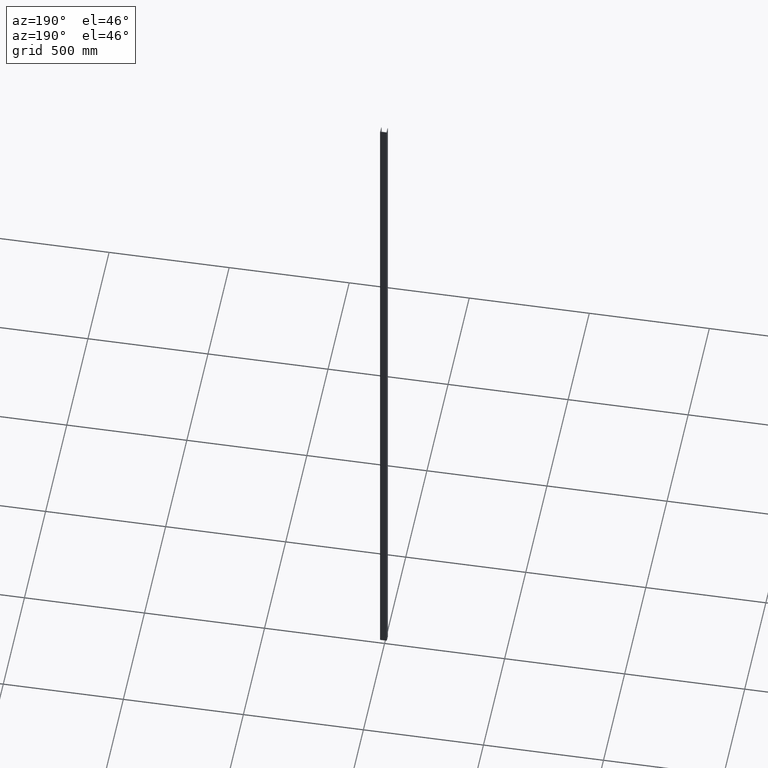
[diagram: clean part render]
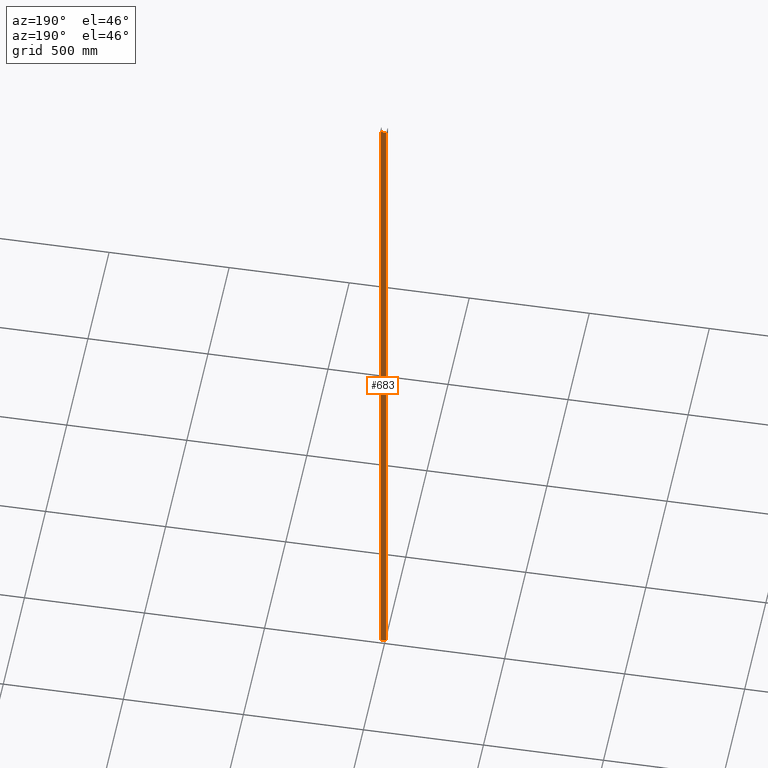
[diagram: same view with one face highlighted and labeled with its STEP entity id]
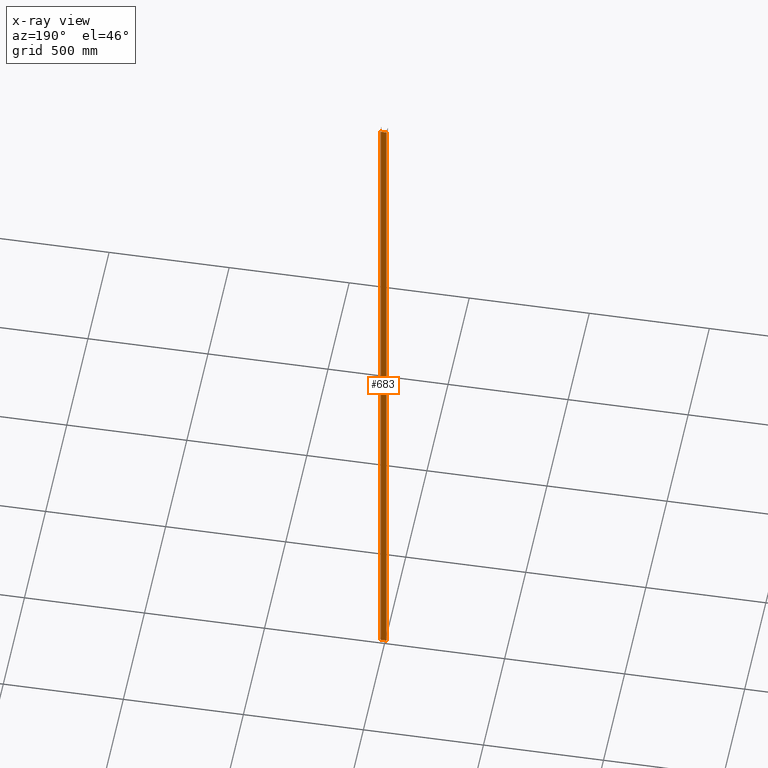
[diagram: x-ray of the same camera — body ghosted, the highlighted face saturated]
A machine part, auxiliary view. The second image highlights one B-rep face of the part: STEP entity #683.
The next image is the same camera in x-ray: the body ghosted, the highlighted face saturated — about 0% of this face is hidden behind the body in this view.
In plain terms, the highlighted planar face has unit normal (-0, 1, 0).
Its self-contained STEP definition (entity closure, byte-faithful):
#182 = EDGE_CURVE ( 'NONE', #9578, #2014, #7839, .T. ) ;
#683 = ADVANCED_FACE ( 'NONE', ( #9939 ), #829, .T. ) ;
#829 = PLANE ( 'NONE',  #2797 ) ;
#930 = DIRECTION ( 'NONE',  ( -0.000000000000000000, -0.000000000000000000, -1.000000000000000000 ) ) ;
#1576 = ORIENTED_EDGE ( 'NONE', *, *, #4655, .T. ) ;
#1747 = VECTOR ( 'NONE', #7168, 1000.000000000000000 ) ;
#2014 = VERTEX_POINT ( 'NONE', #7498 ) ;
#2052 = CARTESIAN_POINT ( 'NONE',  ( 11.99999999999999645, 26.00000000000000355, 1500.000000000000000 ) ) ;
#2152 = VERTEX_POINT ( 'NONE', #7585 ) ;
#2176 = ORIENTED_EDGE ( 'NONE', *, *, #12586, .F. ) ;
#2373 = LINE ( 'NONE', #6839, #13023 ) ;
#2743 = DIRECTION ( 'NONE',  ( 1.000000000000000000, 1.445602896647339163E-16, 0.000000000000000000 ) ) ;
#2797 = AXIS2_PLACEMENT_3D ( 'NONE', #12332, #4901, #10064 ) ;
#2991 = VERTEX_POINT ( 'NONE', #7156 ) ;
#4048 = LINE ( 'NONE', #11341, #5986 ) ;
#4655 = EDGE_CURVE ( 'NONE', #2152, #9578, #4048, .T. ) ;
#4901 = DIRECTION ( 'NONE',  ( -1.445602896647339163E-16, 1.000000000000000000, 0.000000000000000000 ) ) ;
#5906 = ORIENTED_EDGE ( 'NONE', *, *, #8871, .F. ) ;
#5986 = VECTOR ( 'NONE', #12367, 1000.000000000000000 ) ;
#6066 = CARTESIAN_POINT ( 'NONE',  ( 11.99999999999999645, 26.00000000000000355, 1500.000000000000000 ) ) ;
#6839 = CARTESIAN_POINT ( 'NONE',  ( -12.00000000000000355, 26.00000000000000000, -1500.000000000000000 ) ) ;
#7156 = CARTESIAN_POINT ( 'NONE',  ( -12.00000000000000355, 26.00000000000000000, -1500.000000000000000 ) ) ;
#7168 = DIRECTION ( 'NONE',  ( -0.000000000000000000, -0.000000000000000000, -1.000000000000000000 ) ) ;
#7498 = CARTESIAN_POINT ( 'NONE',  ( 11.99999999999999645, 26.00000000000000355, -1500.000000000000000 ) ) ;
#7585 = CARTESIAN_POINT ( 'NONE',  ( -12.00000000000000355, 26.00000000000000000, 1500.000000000000000 ) ) ;
#7839 = LINE ( 'NONE', #6066, #8629 ) ;
#8280 = CARTESIAN_POINT ( 'NONE',  ( -12.00000000000000355, 26.00000000000000000, 1500.000000000000000 ) ) ;
#8629 = VECTOR ( 'NONE', #930, 1000.000000000000000 ) ;
#8871 = EDGE_CURVE ( 'NONE', #2152, #2991, #9968, .T. ) ;
#9578 = VERTEX_POINT ( 'NONE', #2052 ) ;
#9939 = FACE_OUTER_BOUND ( 'NONE', #10063, .T. ) ;
#9968 = LINE ( 'NONE', #8280, #1747 ) ;
#10063 = EDGE_LOOP ( 'NONE', ( #2176, #5906, #1576, #12476 ) ) ;
#10064 = DIRECTION ( 'NONE',  ( -1.000000000000000000, -1.445602896647339163E-16, 0.000000000000000000 ) ) ;
#11341 = CARTESIAN_POINT ( 'NONE',  ( -12.00000000000000355, 26.00000000000000000, 1500.000000000000000 ) ) ;
#12332 = CARTESIAN_POINT ( 'NONE',  ( -12.00000000000000355, 26.00000000000000000, 1500.000000000000000 ) ) ;
#12367 = DIRECTION ( 'NONE',  ( 1.000000000000000000, 1.445602896647339163E-16, 0.000000000000000000 ) ) ;
#12476 = ORIENTED_EDGE ( 'NONE', *, *, #182, .T. ) ;
#12586 = EDGE_CURVE ( 'NONE', #2991, #2014, #2373, .T. ) ;
#13023 = VECTOR ( 'NONE', #2743, 1000.000000000000000 ) ;